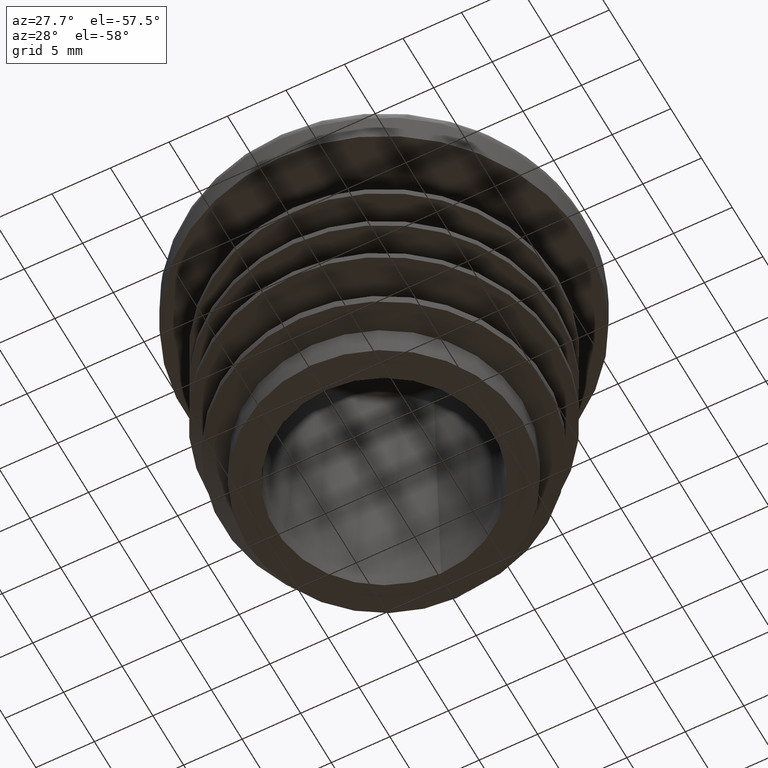
[diagram: clean part render]
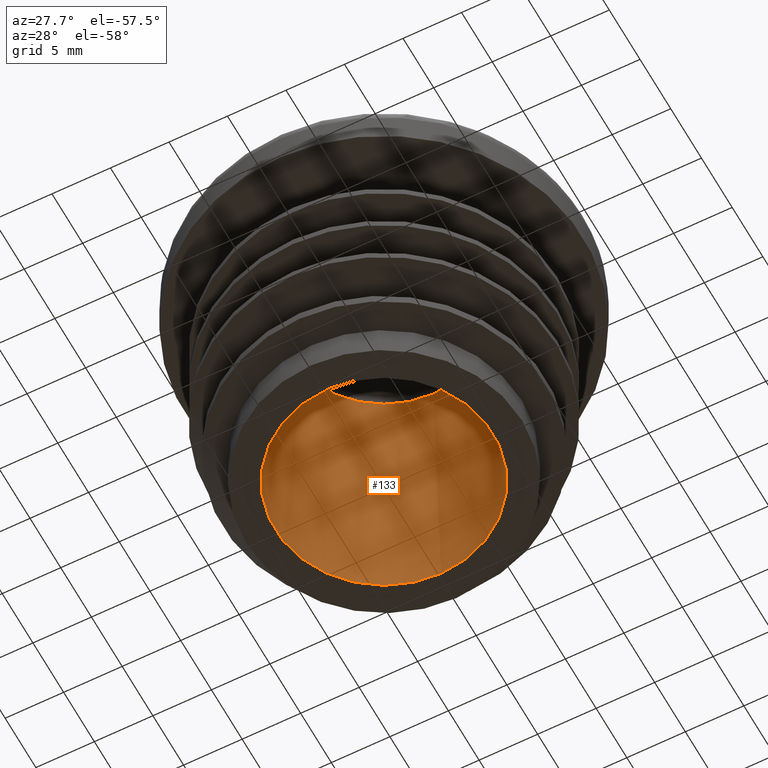
[diagram: same view with one face highlighted and labeled with its STEP entity id]
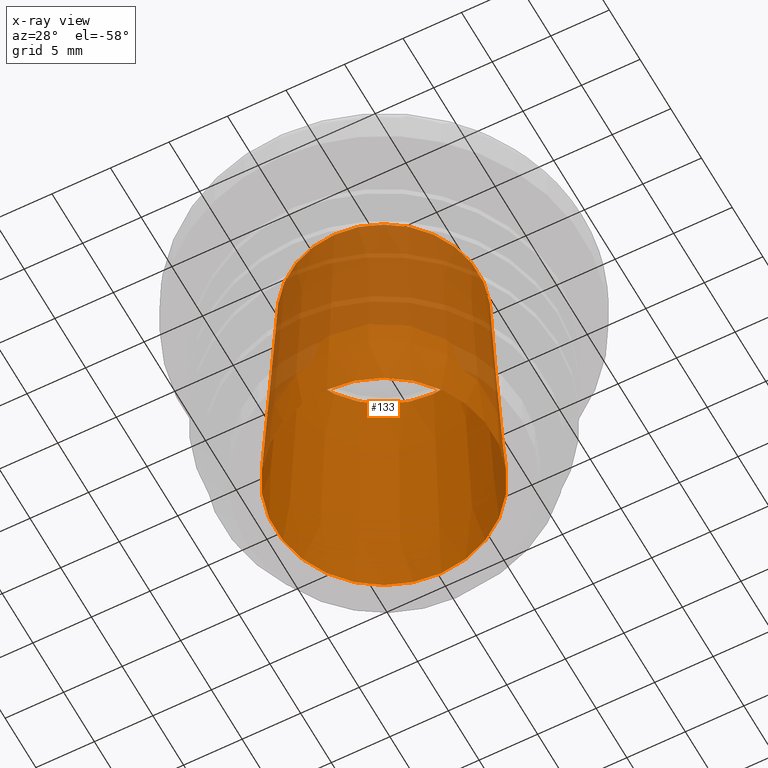
[diagram: x-ray of the same camera — body ghosted, the highlighted face saturated]
A machine part, auxiliary view. The second image highlights one B-rep face of the part: STEP entity #133.
The next image is the same camera in x-ray: the body ghosted, the highlighted face saturated — about 32% of this face is hidden behind the body in this view.
In plain terms, the highlighted conical surface has half-angle 3 deg.
Its self-contained STEP definition (entity closure, byte-faithful):
#133 = ADVANCED_FACE( '', ( #312, #313 ), #314, .F. );
#312 = FACE_BOUND( '', #738, .T. );
#313 = FACE_OUTER_BOUND( '', #739, .T. );
#314 = CONICAL_SURFACE( '', #740, 9.30000000000001, 0.0523598775598301 );
#738 = EDGE_LOOP( '', ( #1266 ) );
#739 = EDGE_LOOP( '', ( #1267 ) );
#740 = AXIS2_PLACEMENT_3D( '', #1268, #1269, #1270 );
#1266 = ORIENTED_EDGE( '', *, *, #1686, .F. );
#1267 = ORIENTED_EDGE( '', *, *, #1685, .T. );
#1268 = CARTESIAN_POINT( '', ( 0.000000000000000, -1.34706698920462E-015, 0.000000000000000 ) );
#1269 = DIRECTION( '', ( 0.000000000000000, -6.12303176911189E-017, -1.00000000000000 ) );
#1270 = DIRECTION( '', ( 0.000000000000000, 1.00000000000000, -6.12303176911189E-017 ) );
#1685 = EDGE_CURVE( '', #1968, #1968, #1969, .T. );
#1686 = EDGE_CURVE( '', #1970, #1970, #1971, .T. );
#1968 = VERTEX_POINT( '', #2929 );
#1969 = CIRCLE( '', #2930, 9.30000000000001 );
#1970 = VERTEX_POINT( '', #2931 );
#1971 = CIRCLE( '', #2932, 8.06567437560519 );
#2929 = CARTESIAN_POINT( '', ( 0.000000000000000, 9.30000000000000, -5.69441954527406E-016 ) );
#2930 = AXIS2_PLACEMENT_3D( '', #3425, #3426, #3427 );
#2931 = CARTESIAN_POINT( '', ( 0.000000000000000, 8.06567437560519, 23.5523359562429 ) );
#2932 = AXIS2_PLACEMENT_3D( '', #3428, #3429, #3430 );
#3425 = CARTESIAN_POINT( '', ( 0.000000000000000, -1.34706698920462E-015, 0.000000000000000 ) );
#3426 = DIRECTION( '', ( 0.000000000000000, -6.12303176911189E-017, -1.00000000000000 ) );
#3427 = DIRECTION( '', ( 0.000000000000000, 1.00000000000000, -6.12303176911189E-017 ) );
#3428 = CARTESIAN_POINT( '', ( 0.000000000000000, 9.50500237641014E-017, 23.5523359562429 ) );
#3429 = DIRECTION( '', ( 0.000000000000000, -6.12303176911189E-017, -1.00000000000000 ) );
#3430 = DIRECTION( '', ( 0.000000000000000, 1.00000000000000, -6.12303176911189E-017 ) );